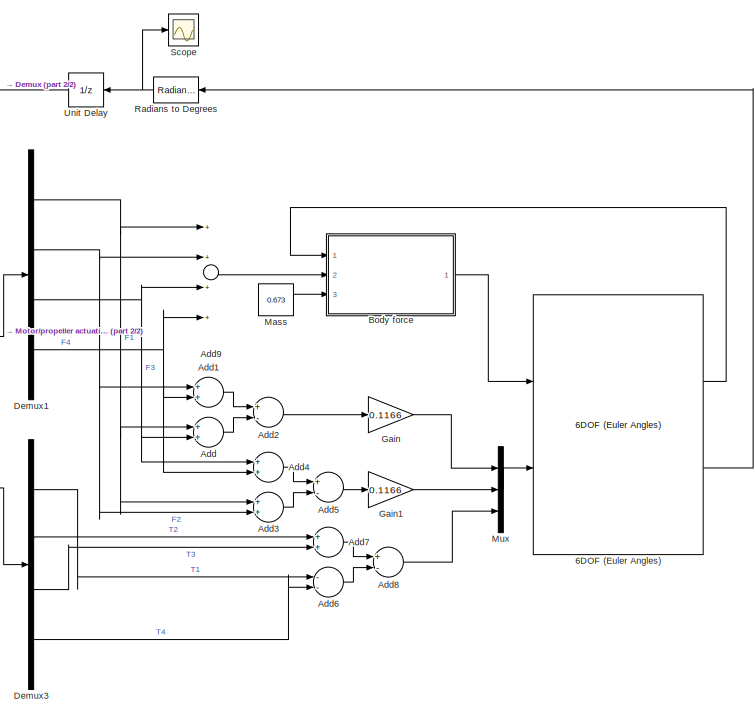
[diagram: root canvas - part 1/2, right side, full height]
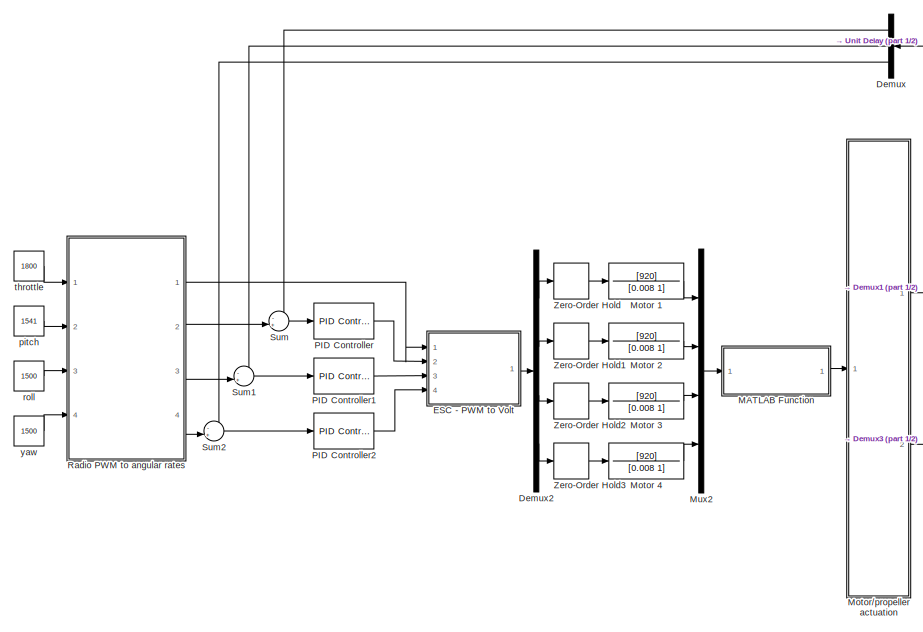
[diagram: root canvas - part 2/2, left side, full height]
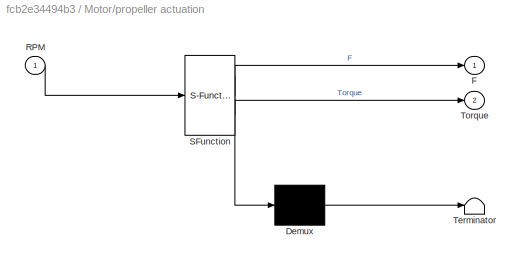
MODEL slx_fcb2e34494b3
KIND model
CONFIG AbsTol = auto
CONFIG EnableMultiTasking = off
CONFIG FixedStep = auto
CONFIG MaxStep = auto
CONFIG MinStep = auto
CONFIG RelTol = 1e-3
CONFIG SampleTimeConstraint = Unconstrained
CONFIG Solver = VariableStepAuto
CONFIG SolverName = VariableStepAuto
CONFIG StartTime = 0.0
CONFIG StopTime = 10.0
BLOCK [Reference] 6DOF (Euler Angles)  REF=shared6dof/6DOF (Euler Angles)
  Ports = [2, 8]
  SourceBlock = shared6dof/6DOF (Euler Angles)
  SourceProductBaseCode = AE
  SourceProductName = Aerospace Blockset
  SourceType = 6DOF EoM (Body Axis)
BLOCK [Sum] Add
  InputSameDT = off
  OutDataTypeStr = Inherit: Inherit via internal rule
  Ports = [2, 1]
  SaturateOnIntegerOverflow = off
BLOCK [Sum] Add1
  InputSameDT = off
  OutDataTypeStr = Inherit: Inherit via internal rule
  Ports = [2, 1]
  SaturateOnIntegerOverflow = off
BLOCK [Sum] Add2
  InputSameDT = off
  Inputs = +-
  OutDataTypeStr = Inherit: Inherit via internal rule
  Ports = [2, 1]
  SaturateOnIntegerOverflow = off
BLOCK [Sum] Add3
  InputSameDT = off
  OutDataTypeStr = Inherit: Inherit via internal rule
  Ports = [2, 1]
  SaturateOnIntegerOverflow = off
BLOCK [Sum] Add4
  InputSameDT = off
  OutDataTypeStr = Inherit: Inherit via internal rule
  Ports = [2, 1]
  SaturateOnIntegerOverflow = off
BLOCK [Sum] Add5
  InputSameDT = off
  Inputs = +-
  OutDataTypeStr = Inherit: Inherit via internal rule
  Ports = [2, 1]
  SaturateOnIntegerOverflow = off
BLOCK [Sum] Add6
  InputSameDT = off
  Inputs = --
  OutDataTypeStr = Inherit: Inherit via internal rule
  Ports = [2, 1]
  SaturateOnIntegerOverflow = off
BLOCK [Sum] Add7
  InputSameDT = off
  OutDataTypeStr = Inherit: Inherit via internal rule
  Ports = [2, 1]
  SaturateOnIntegerOverflow = off
BLOCK [Sum] Add8
  InputSameDT = off
  Inputs = +-
  OutDataTypeStr = Inherit: Inherit via internal rule
  Ports = [2, 1]
  SaturateOnIntegerOverflow = off
BLOCK [Sum] Add9
  InputSameDT = off
  Inputs = ++++
  OutDataTypeStr = Inherit: Inherit via internal rule
  Ports = [4, 1]
  SaturateOnIntegerOverflow = off
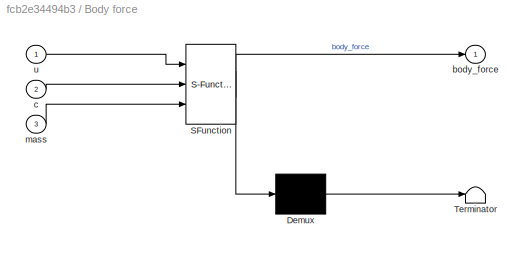
BLOCK [SubSystem] Body force
  ErrorFcn = Stateflow.Translate.translate
  PermitHierarchicalResolution = ExplicitOnly
  Ports = [3, 1]
  RequestExecContextInheritance = off
  SFBlockType = MATLAB Function
  TreatAsAtomicUnit = on
BLOCK [Demux] Body force/ Demux 
  Outputs = 1
  Ports = [1, 1]
BLOCK [S-Function] Body force/ SFunction 
  EnableBusSupport = on
  FunctionName = sf_sfun
  PortCounts = [3 2]
  Ports = [3, 2]
  SFcnIsStateOwnerBlock = off
  SFunctionDeploymentMode = off
  Tag = Stateflow S-Function modello2 1
BLOCK [Terminator] Body force/ Terminator 
BLOCK [Outport] Body force/body_force
  IconDisplay = Port number
BLOCK [Inport] Body force/c
  IconDisplay = Port number
  Port = 2
BLOCK [Inport] Body force/mass
  IconDisplay = Port number
  Port = 3
BLOCK [Inport] Body force/u
  IconDisplay = Port number
BLOCK [Demux] Demux
  DisplayOption = bar
  Outputs = 3
  Ports = [1, 3]
BLOCK [Demux] Demux1
  DisplayOption = bar
  Ports = [1, 4]
BLOCK [Demux] Demux2
  DisplayOption = bar
  Ports = [1, 4]
BLOCK [Demux] Demux3
  DisplayOption = bar
  Ports = [1, 4]
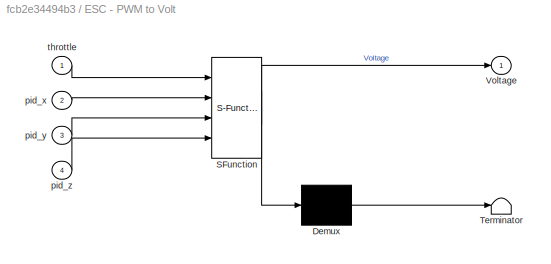
BLOCK [SubSystem] ESC - PWM to Volt 
  ErrorFcn = Stateflow.Translate.translate
  PermitHierarchicalResolution = ExplicitOnly
  Ports = [4, 1]
  RequestExecContextInheritance = off
  SFBlockType = MATLAB Function
  TreatAsAtomicUnit = on
BLOCK [Demux] ESC - PWM to Volt / Demux 
  Outputs = 1
  Ports = [1, 1]
BLOCK [S-Function] ESC - PWM to Volt / SFunction 
  EnableBusSupport = on
  FunctionName = sf_sfun
  PortCounts = [4 2]
  Ports = [4, 2]
  SFcnIsStateOwnerBlock = off
  SFunctionDeploymentMode = off
  Tag = Stateflow S-Function modello2 2
BLOCK [Terminator] ESC - PWM to Volt / Terminator 
BLOCK [Outport] ESC - PWM to Volt /Voltage
  IconDisplay = Port number
BLOCK [Inport] ESC - PWM to Volt /pid_x
  IconDisplay = Port number
  Port = 2
BLOCK [Inport] ESC - PWM to Volt /pid_y
  IconDisplay = Port number
  Port = 3
BLOCK [Inport] ESC - PWM to Volt /pid_z
  IconDisplay = Port number
  Port = 4
BLOCK [Inport] ESC - PWM to Volt /throttle
  IconDisplay = Port number
BLOCK [Gain] Gain
  Gain = 0.1166
  OutDataTypeStr = Inherit: Inherit via internal rule
  ParamDataTypeStr = Inherit: Inherit via internal rule
  SaturateOnIntegerOverflow = off
BLOCK [Gain] Gain1
  Gain = 0.1166
  OutDataTypeStr = Inherit: Inherit via internal rule
  ParamDataTypeStr = Inherit: Inherit via internal rule
  SaturateOnIntegerOverflow = off
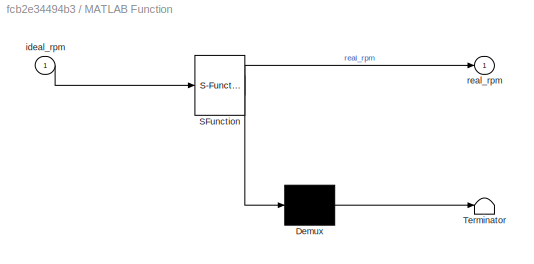
BLOCK [SubSystem] MATLAB Function
  ErrorFcn = Stateflow.Translate.translate
  PermitHierarchicalResolution = ExplicitOnly
  Ports = [1, 1]
  RequestExecContextInheritance = off
  SFBlockType = MATLAB Function
  TreatAsAtomicUnit = on
BLOCK [Demux] MATLAB Function/ Demux 
  Outputs = 1
  Ports = [1, 1]
BLOCK [S-Function] MATLAB Function/ SFunction 
  EnableBusSupport = on
  FunctionName = sf_sfun
  PortCounts = [1 2]
  Ports = [1, 2]
  SFcnIsStateOwnerBlock = off
  SFunctionDeploymentMode = off
  Tag = Stateflow S-Function modello2 6
BLOCK [Terminator] MATLAB Function/ Terminator 
BLOCK [Inport] MATLAB Function/ideal_rpm
  IconDisplay = Port number
BLOCK [Outport] MATLAB Function/real_rpm
  IconDisplay = Port number
BLOCK [Constant] Mass
  Value = 0.673
BLOCK [TransferFcn] Motor 1
  Denominator = [0.008 1]
  Numerator = [920]
BLOCK [TransferFcn] Motor 2
  Denominator = [0.008 1]
  Numerator = [920]
BLOCK [TransferFcn] Motor 3
  Denominator = [0.008 1]
  Numerator = [920]
BLOCK [TransferFcn] Motor 4
  Denominator = [0.008 1]
  Numerator = [920]
BLOCK [SubSystem] Motor//propeller actuation
  ErrorFcn = Stateflow.Translate.translate
  PermitHierarchicalResolution = ExplicitOnly
  Ports = [1, 2]
  RequestExecContextInheritance = off
  SFBlockType = MATLAB Function
  TreatAsAtomicUnit = on
BLOCK [Demux] Motor//propeller actuation/ Demux 
  Outputs = 1
  Ports = [1, 1]
BLOCK [S-Function] Motor//propeller actuation/ SFunction 
  EnableBusSupport = on
  FunctionName = sf_sfun
  PortCounts = [1 3]
  Ports = [1, 3]
  SFcnIsStateOwnerBlock = off
  SFunctionDeploymentMode = off
  Tag = Stateflow S-Function modello2 5
BLOCK [Terminator] Motor//propeller actuation/ Terminator 
BLOCK [Outport] Motor//propeller actuation/F
  IconDisplay = Port number
BLOCK [Inport] Motor//propeller actuation/RPM
  IconDisplay = Port number
BLOCK [Outport] Motor//propeller actuation/Torque
  IconDisplay = Port number
  Port = 2
BLOCK [Mux] Mux
  DisplayOption = bar
  Inputs = 3
  Ports = [3, 1]
BLOCK [Mux] Mux2
  DisplayOption = bar
  Ports = [4, 1]
BLOCK [Reference] PID Controller  REF=simulink/Continuous/PID Controller
  Ports = [1, 1]
  SourceBlock = simulink/Continuous/PID Controller
  SourceProductBaseCode = SL
  SourceProductName = Simulink
  SourceType = PID 1dof
BLOCK [Reference] PID Controller1  REF=simulink/Continuous/PID Controller
  Ports = [1, 1]
  SourceBlock = simulink/Continuous/PID Controller
  SourceProductBaseCode = SL
  SourceProductName = Simulink
  SourceType = PID 1dof
BLOCK [Reference] PID Controller2  REF=simulink/Continuous/PID Controller
  Ports = [1, 1]
  SourceBlock = simulink/Continuous/PID Controller
  SourceProductBaseCode = SL
  SourceProductName = Simulink
  SourceType = PID 1dof
BLOCK [Reference] Radians to Degrees  REF=simulink_extras/Transformations/Radians
to Degrees
  Ports = [1, 1]
  SourceBlock = simulink_extras/Transformations/Radians\nto Degrees
  SourceProductBaseCode = SL
  SourceProductName = Simulink
  SourceType = RadiansToDegrees
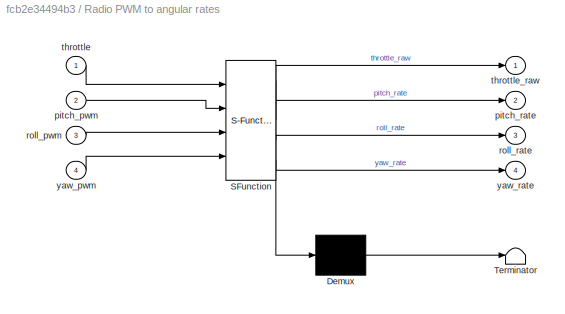
BLOCK [SubSystem] Radio PWM to angular rates
  ErrorFcn = Stateflow.Translate.translate
  PermitHierarchicalResolution = ExplicitOnly
  Ports = [4, 4]
  RequestExecContextInheritance = off
  SFBlockType = MATLAB Function
  TreatAsAtomicUnit = on
BLOCK [Demux] Radio PWM to angular rates/ Demux 
  Outputs = 1
  Ports = [1, 1]
BLOCK [S-Function] Radio PWM to angular rates/ SFunction 
  EnableBusSupport = on
  FunctionName = sf_sfun
  PortCounts = [4 5]
  Ports = [4, 5]
  SFcnIsStateOwnerBlock = off
  SFunctionDeploymentMode = off
  Tag = Stateflow S-Function modello2 3
BLOCK [Terminator] Radio PWM to angular rates/ Terminator 
BLOCK [Inport] Radio PWM to angular rates/pitch_pwm
  IconDisplay = Port number
  Port = 2
BLOCK [Outport] Radio PWM to angular rates/pitch_rate
  IconDisplay = Port number
  Port = 2
BLOCK [Inport] Radio PWM to angular rates/roll_pwm
  IconDisplay = Port number
  Port = 3
BLOCK [Outport] Radio PWM to angular rates/roll_rate
  IconDisplay = Port number
  Port = 3
BLOCK [Inport] Radio PWM to angular rates/throttle
  IconDisplay = Port number
BLOCK [Outport] Radio PWM to angular rates/throttle_raw
  IconDisplay = Port number
BLOCK [Inport] Radio PWM to angular rates/yaw_pwm
  IconDisplay = Port number
  Port = 4
BLOCK [Outport] Radio PWM to angular rates/yaw_rate
  IconDisplay = Port number
  Port = 4
BLOCK [Scope] Scope
  Floating = off
  NumInputPorts = 1
  Ports = [1]
  ScopeSpecificationString = Simulink.scopes.TimeScopeBlockCfg('CurrentConfiguration', extmgr.ConfigurationSet(extmgr.Configuration('Core','General UI',true),extmgr.Configuration('Core','Source UI',true),extmgr.Configuration('Sources','WiredSimulink',true),extmgr.Configuration('Visuals','Time Domain',true,'SerializedDisplays',{struct('MinYLimReal','-1673.52286','MaxYLimReal','15059.26158','YLabelReal','','MinYLimMag','  0.000...<+1412ch>
BLOCK [Sum] Sum
  IconShape = round
  InputSameDT = off
  Inputs = -+|
  OutDataTypeStr = Inherit: Inherit via internal rule
  Ports = [2, 1]
  SaturateOnIntegerOverflow = off
BLOCK [Sum] Sum1
  IconShape = round
  InputSameDT = off
  Inputs = -+|
  OutDataTypeStr = Inherit: Inherit via internal rule
  Ports = [2, 1]
  SaturateOnIntegerOverflow = off
BLOCK [Sum] Sum2
  IconShape = round
  InputSameDT = off
  Inputs = -+|
  OutDataTypeStr = Inherit: Inherit via internal rule
  Ports = [2, 1]
  SaturateOnIntegerOverflow = off
BLOCK [UnitDelay] Unit Delay
  HasFrameUpgradeWarning = on
  SampleTime = -1
BLOCK [ZeroOrderHold] Zero-Order Hold
  SampleTime = -1
BLOCK [ZeroOrderHold] Zero-Order Hold1
  SampleTime = -1
BLOCK [ZeroOrderHold] Zero-Order Hold2
  SampleTime = -1
BLOCK [ZeroOrderHold] Zero-Order Hold3
  SampleTime = -1
BLOCK [Constant] pitch
  Value = 1541
BLOCK [Constant] roll
  Value = 1500
BLOCK [Constant] throttle
  Value = 1800
BLOCK [Constant] yaw
  Value = 1500
LINE 6DOF (Euler Angles):3 -> Body force:1
LINE 6DOF (Euler Angles):6 -> Radians to Degrees:1
LINE Add1:1 -> Add2:1
LINE Add2:1 -> Gain:1
LINE Add3:1 -> Add5:2
LINE Add4:1 -> Add5:1
LINE Add5:1 -> Gain1:1
LINE Add6:1 -> Add8:2
LINE Add7:1 -> Add8:1
LINE Add8:1 -> Mux:3
LINE Add9:1 -> Body force:2
LINE Add:1 -> Add2:2
LINE Body force:1 -> 6DOF (Euler Angles):1
NET Demux1:1 -> Add3:1, Add9:1, Add:1
NET Demux1:2 -> Add1:1, Add3:2, Add9:2
NET Demux1:3 -> Add4:1, Add9:3, Add:2
NET Demux1:4 -> Add1:2, Add4:2, Add9:4
LINE Demux2:1 -> Zero-Order Hold:1
LINE Demux2:2 -> Zero-Order Hold1:1
LINE Demux2:3 -> Zero-Order Hold2:1
LINE Demux2:4 -> Zero-Order Hold3:1
LINE Demux3:1 -> Add6:1
LINE Demux3:2 -> Add7:1
LINE Demux3:3 -> Add7:2
LINE Demux3:4 -> Add6:2
LINE Demux:1 -> Sum:1
LINE Demux:2 -> Sum1:1
LINE Demux:3 -> Sum2:1
LINE ESC - PWM to Volt :1 -> Demux2:1
LINE Gain1:1 -> Mux:2
LINE Gain:1 -> Mux:1
LINE MATLAB Function:1 -> Motor//propeller actuation:1
LINE Mass:1 -> Body force:3
LINE Motor 1:1 -> Mux2:1
LINE Motor 2:1 -> Mux2:2
LINE Motor 3:1 -> Mux2:3
LINE Motor 4:1 -> Mux2:4
LINE Motor//propeller actuation:1 -> Demux1:1
LINE Motor//propeller actuation:2 -> Demux3:1
LINE Mux2:1 -> MATLAB Function:1
LINE Mux:1 -> 6DOF (Euler Angles):2
LINE PID Controller1:1 -> ESC - PWM to Volt :3
LINE PID Controller2:1 -> ESC - PWM to Volt :4
LINE PID Controller:1 -> ESC - PWM to Volt :2
NET Radians to Degrees:1 -> Scope:1, Unit Delay:1
LINE Radio PWM to angular rates:1 -> ESC - PWM to Volt :1
LINE Radio PWM to angular rates:2 -> Sum:2
LINE Radio PWM to angular rates:3 -> Sum1:2
LINE Radio PWM to angular rates:4 -> Sum2:2
LINE Sum1:1 -> PID Controller1:1
LINE Sum2:1 -> PID Controller2:1
LINE Sum:1 -> PID Controller:1
LINE Unit Delay:1 -> Demux:1
LINE Zero-Order Hold1:1 -> Motor 2:1
LINE Zero-Order Hold2:1 -> Motor 3:1
LINE Zero-Order Hold3:1 -> Motor 4:1
LINE Zero-Order Hold:1 -> Motor 1:1
LINE pitch:1 -> Radio PWM to angular rates:2
LINE roll:1 -> Radio PWM to angular rates:3
LINE throttle:1 -> Radio PWM to angular rates:1
LINE yaw:1 -> Radio PWM to angular rates:4
note: NET lines group one-source signal fan-out (src -> all destinations, sorted); 1:1 wires keep LINE
CHART Body force states=1 transitions=1
  STATE_LABEL 'eML_blk_kernel()'
  STATE_LABEL 'SCRIPT:\nfunction body_force = fcn(u,c,mass)\n\n    %gli angoli che mi porto dalla retroazione\n    phi   = u(1);\n    theta = u(2);\n    psi   = u(3);\n    \n    %le matrici di rotazione che mi servono per le accelerazioni\n    Rx = [     1        0           0 \n               0      cos(phi)   -sin(phi)\n               0      sin(phi)    cos(phi) ];\n       \n    \n    Ry = [ cos(theta)    0       sin(theta)...<+483ch>'
CHART ESC - PWM to Volt
 states=1 transitions=1
  STATE_LABEL 'eML_blk_kernel()'
  STATE_LABEL 'SCRIPT:\n\nfunction Voltage = fcn(throttle,pid_x,pid_y,pid_z)\n    %Parameters names, except the phisical ones, are directly taken from the C code implementation i.o.t. have 1:1 match  \n    Voltage        = [0;0;0;0];\n    \n    if( throttle > 1800 )\n        throttle = 1800;  %leave room for PID controller\n    end\n    \n    Voltage(1) = throttle-pid_y-pid_x-pid_z;  %rear  right motor PWM\n    Voltage(2) ...<+444ch>'
CHART Radio PWM to angular rates states=1 transitions=1
  STATE_LABEL 'eML_blk_kernel()'
  STATE_LABEL 'SCRIPT:\nfunction [throttle_raw,pitch_rate,roll_rate,yaw_rate] = fcn(throttle,pitch_pwm,roll_pwm,yaw_pwm)\n\nDEADBAND_UPPER_BOUND      = 1508;\nDEADBAND_LOWER_BOUND      = 1492;\nSETPOINT_PITCH_SPEED_RATE = 3.0;\nSETPOINT_ROLL_SPEED_RATE  = 3.0;\nSETPOINT_YAW_SPEED_RATE   = 3.0;\n\npitch_rate   = 0;\nroll_rate    = 0;\nyaw_rate     = 0;\nthrottle_raw = throttle;\n\nif( pitch_pwm > DEADBAND_UPPER_BOUND )\n    pit...<+692ch>'
CHART Motor//propeller
actuation states=1 transitions=1
  STATE_LABEL 'eML_blk_kernel()'
  STATE_LABEL 'SCRIPT:\nfunction [F,Torque]  = fcn(RPM)\n    \n    Torque = [0 0 0 0];\n    F      = [0 0 0 0];\n\n    for i = 1:4\n        Ct         = 6.3*10^-19*RPM(i)^4-1.51*10^-14*RPM(i)^3+1.21*10^-10*RPM(i)^2-2.58*10^-7*RPM(i)+0.12;\n        F(i)       = Ct*1.225*(RPM(i)/60)^2*0.001704;\n        Torque(i)  = -1.79*10^-26*RPM(i)^6+4.63*10^-21*RPM(i)^5-1.37*10^-16*RPM(i)^4+1.5*10^-12*RPM(i)^3-5.96*10^-9*RPM(i)^2+1.11...<+48ch>'
CHART MATLAB Function states=1 transitions=1
  STATE_LABEL 'eML_blk_kernel()'
  STATE_LABEL 'SCRIPT:\nfunction real_rpm = fcn(ideal_rpm)\n\n    real_rpm = [0 0 0 0];\n    \n    for i = 1:4\n        real_rpm(i) = -2.4*10^-9*ideal_rpm(i)^3-9.22*10^-21*ideal_rpm(i)^2+ideal_rpm(i)+9.36*10^-15;\n    end\n\nend\n'
